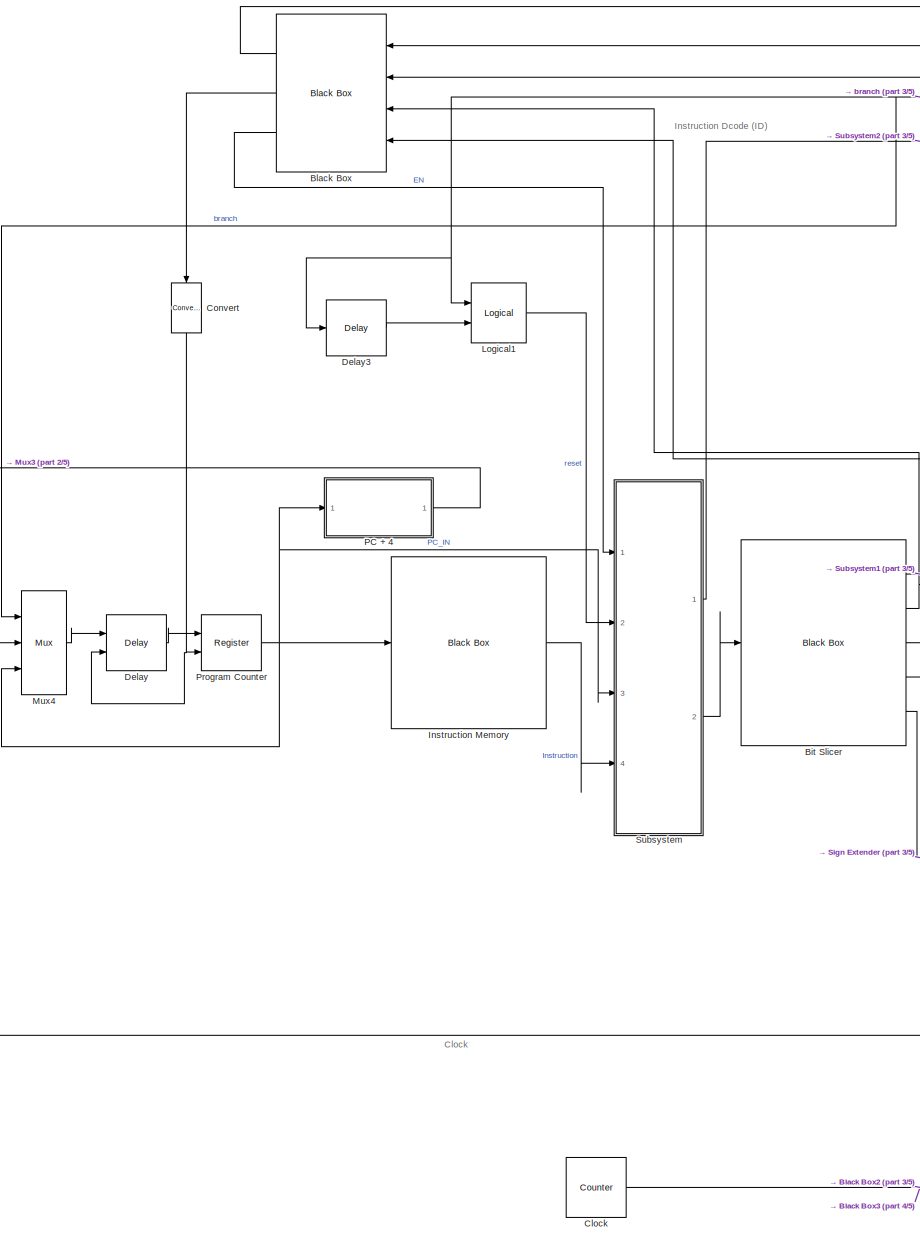
[diagram: root canvas - part 1/5, middle left region]
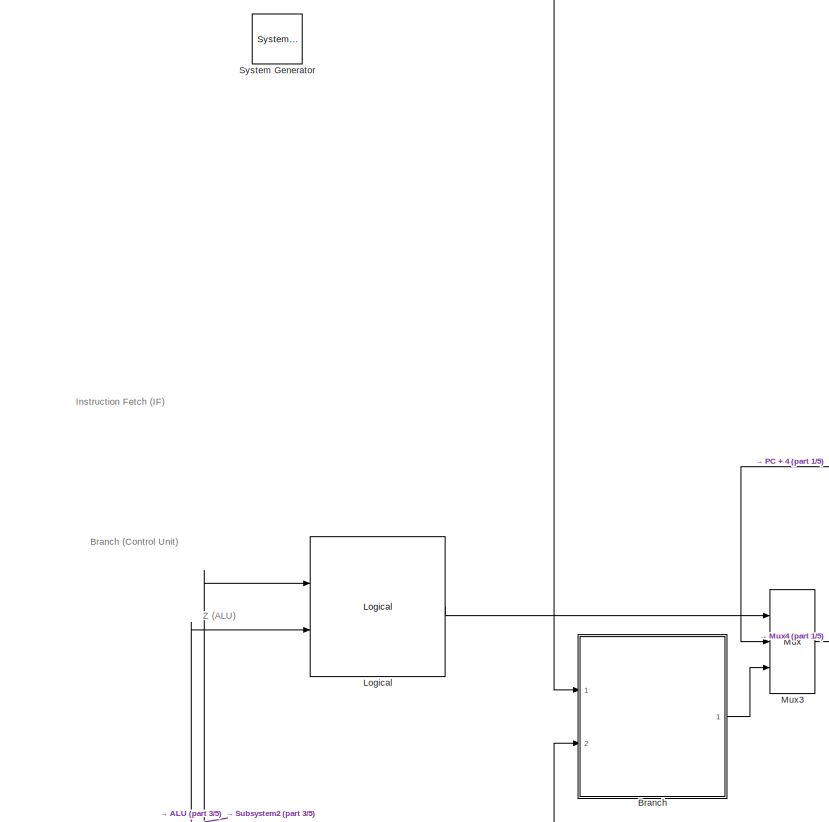
[diagram: root canvas - part 2/5, top left region]
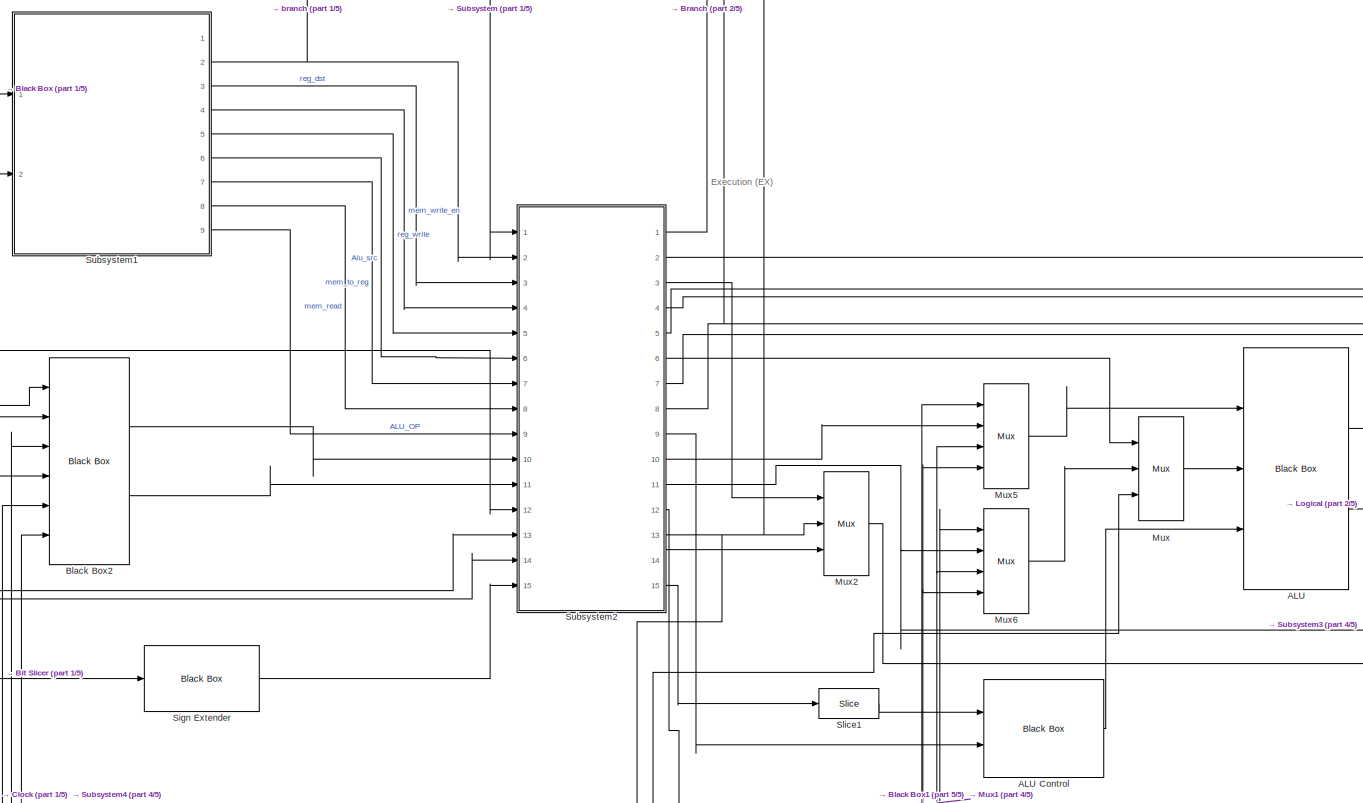
[diagram: root canvas - part 3/5, central region]
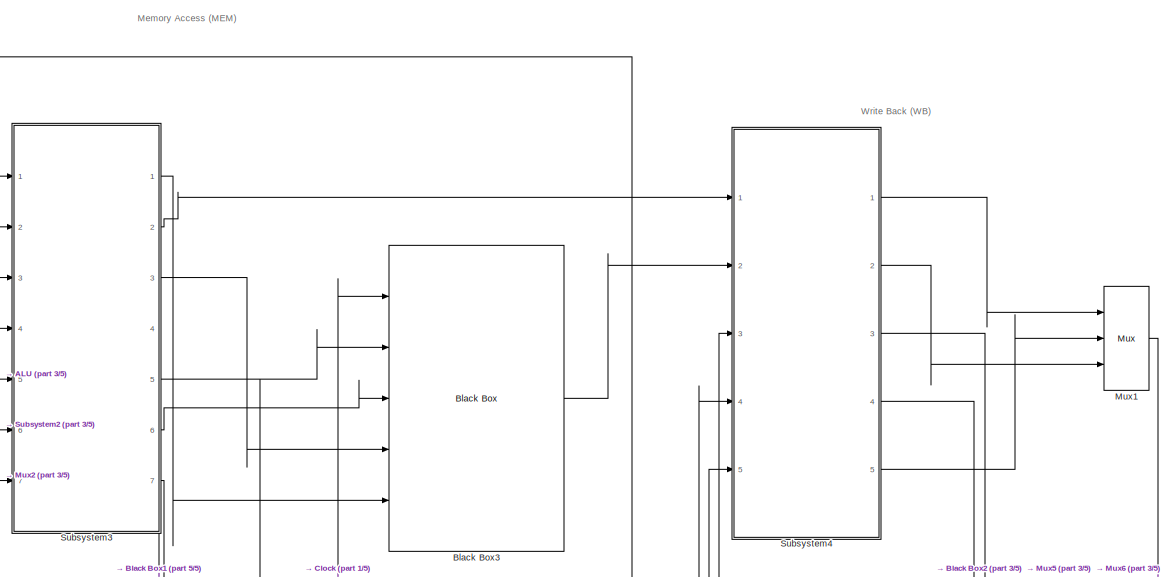
[diagram: root canvas - part 4/5, middle right region]
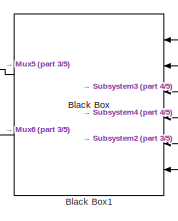
[diagram: root canvas - part 5/5, bottom right region]
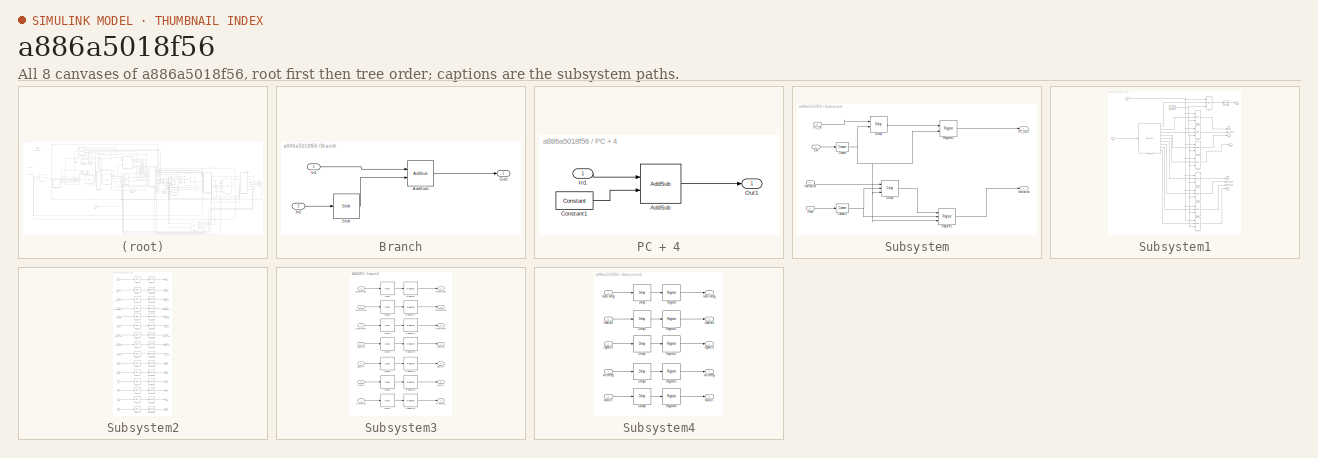
[diagram: thumbnail index - all 8 canvases of the model, root first then tree order]
MODEL slx_a886a5018f56
KIND model
CONFIG AbsTol = auto
CONFIG EnableMultiTasking = off
CONFIG FixedStep = auto
CONFIG MaxStep = auto
CONFIG MinStep = auto
CONFIG RelTol = 1e-3
CONFIG SampleTimeConstraint = Unconstrained
CONFIG Solver = VariableStepAuto
CONFIG SolverName = VariableStepAuto
CONFIG StartTime = 0.0
CONFIG StopTime = 250
BLOCK [Reference]  System Generator  REF=xbsIndex_r4/ System Generator
  AttributesFormatString = System\nGenerator
  Ports = []
  SourceBlock = xbsIndex_r4/ System Generator
  SourceType = Xilinx System Generator Block
  Tag = genX
  UserDataPersistent = on
BLOCK [Reference] ALU  REF=xbsIndex_r4/Black Box
  Ports = [3, 2]
  SourceBlock = xbsIndex_r4/Black Box
  SourceType = Xilinx Black Box Block
BLOCK [Reference] ALU Control  REF=xbsIndex_r4/Black Box
  Ports = [2, 1]
  SourceBlock = xbsIndex_r4/Black Box
  SourceType = Xilinx Black Box Block
BLOCK [Reference] Bit Slicer  REF=xbsIndex_r4/Black Box
  Ports = [1, 5]
  SourceBlock = xbsIndex_r4/Black Box
  SourceType = Xilinx Black Box Block
BLOCK [Reference] Black Box  REF=xbsIndex_r4/Black Box
  Ports = [4, 3]
  SourceBlock = xbsIndex_r4/Black Box
  SourceType = Xilinx Black Box Block
BLOCK [Reference] Black Box1  REF=xbsIndex_r4/Black Box
  Ports = [6, 2]
  SourceBlock = xbsIndex_r4/Black Box
  SourceType = Xilinx Black Box Block
BLOCK [Reference] Black Box2  REF=xbsIndex_r4/Black Box
  Ports = [6, 2]
  SourceBlock = xbsIndex_r4/Black Box
  SourceType = Xilinx Black Box Block
BLOCK [Reference] Black Box3  REF=xbsIndex_r4/Black Box
  Ports = [5, 1]
  SourceBlock = xbsIndex_r4/Black Box
  SourceType = Xilinx Black Box Block
BLOCK [SubSystem] Branch
  Ports = [2, 1]
  RequestExecContextInheritance = off
  Variant = off
BLOCK [Reference] Branch/AddSub1  REF=xbsIndex_r4/AddSub
  Ports = [2, 1]
  SourceBlock = xbsIndex_r4/AddSub
  SourceType = Xilinx Adder/Subtracter Block
BLOCK [Inport] Branch/In1
  IconDisplay = Port number
BLOCK [Inport] Branch/In2
  IconDisplay = Port number
  Port = 2
BLOCK [Outport] Branch/Out1
  IconDisplay = Port number
BLOCK [Reference] Branch/Shift  REF=xbsIndex_r4/Shift
  Ports = [1, 1]
  SourceBlock = xbsIndex_r4/Shift
  SourceType = Xilinx Binary Shift Operator Block
BLOCK [Reference] Clock  REF=xbsIndex_r4/Counter
  Ports = [0, 1]
  SourceBlock = xbsIndex_r4/Counter
  SourceType = Xilinx Counter Block
BLOCK [Reference] Convert  REF=xbsIndex_r4/Convert
  Ports = [1, 1]
  SourceBlock = xbsIndex_r4/Convert
  SourceType = Xilinx Type Converter Block
BLOCK [Reference] Delay   REF=xbsIndex_r4/Delay
  Ports = [2, 1]
  SourceBlock = xbsIndex_r4/Delay
  SourceType = Xilinx Delay Block
BLOCK [Reference] Delay3  REF=xbsIndex_r4/Delay
  Ports = [1, 1]
  SourceBlock = xbsIndex_r4/Delay
  SourceType = Xilinx Delay Block
BLOCK [Reference] Instruction Memory  REF=xbsIndex_r4/Black Box
  Ports = [1, 1]
  SourceBlock = xbsIndex_r4/Black Box
  SourceType = Xilinx Black Box Block
BLOCK [Reference] Logical  REF=xbsIndex_r4/Logical
  Ports = [2, 1]
  SourceBlock = xbsIndex_r4/Logical
  SourceType = Xilinx Logical Block Block
BLOCK [Reference] Logical1  REF=xbsIndex_r4/Logical
  Ports = [2, 1]
  SourceBlock = xbsIndex_r4/Logical
  SourceType = Xilinx Logical Block Block
BLOCK [Reference] Mux  REF=xbsIndex_r4/Mux
  Ports = [3, 1]
  SourceBlock = xbsIndex_r4/Mux
  SourceType = Xilinx Bus Multiplexer Block
BLOCK [Reference] Mux1  REF=xbsIndex_r4/Mux
  Ports = [3, 1]
  SourceBlock = xbsIndex_r4/Mux
  SourceType = Xilinx Bus Multiplexer Block
BLOCK [Reference] Mux2  REF=xbsIndex_r4/Mux
  Ports = [3, 1]
  SourceBlock = xbsIndex_r4/Mux
  SourceType = Xilinx Bus Multiplexer Block
BLOCK [Reference] Mux3  REF=xbsIndex_r4/Mux
  Ports = [3, 1]
  SourceBlock = xbsIndex_r4/Mux
  SourceType = Xilinx Bus Multiplexer Block
BLOCK [Reference] Mux4  REF=xbsIndex_r4/Mux
  Ports = [3, 1]
  SourceBlock = xbsIndex_r4/Mux
  SourceType = Xilinx Bus Multiplexer Block
BLOCK [Reference] Mux5  REF=xbsIndex_r4/Mux
  Ports = [4, 1]
  SourceBlock = xbsIndex_r4/Mux
  SourceType = Xilinx Bus Multiplexer Block
BLOCK [Reference] Mux6  REF=xbsIndex_r4/Mux
  Ports = [4, 1]
  SourceBlock = xbsIndex_r4/Mux
  SourceType = Xilinx Bus Multiplexer Block
BLOCK [SubSystem] PC + 4
  Ports = [1, 1]
  RequestExecContextInheritance = off
  Variant = off
BLOCK [Reference] PC + 4/AddSub  REF=xbsIndex_r4/AddSub
  Ports = [2, 1]
  SourceBlock = xbsIndex_r4/AddSub
  SourceType = Xilinx Adder/Subtracter Block
BLOCK [Reference] PC + 4/Constant1  REF=xbsIndex_r4/Constant
  Ports = [0, 1]
  SourceBlock = xbsIndex_r4/Constant
  SourceType = Xilinx Constant Block Block
BLOCK [Inport] PC + 4/In1
  IconDisplay = Port number
BLOCK [Outport] PC + 4/Out1
  IconDisplay = Port number
BLOCK [Reference] Program Counter   REF=xbsIndex_r4/Register
  Ports = [2, 1]
  SourceBlock = xbsIndex_r4/Register
  SourceType = Xilinx Register Block
BLOCK [Reference] Sign Extender  REF=xbsIndex_r4/Black Box
  Ports = [1, 1]
  SourceBlock = xbsIndex_r4/Black Box
  SourceType = Xilinx Black Box Block
BLOCK [Reference] Slice1  REF=xbsIndex_r4/Slice
  Ports = [1, 1]
  SourceBlock = xbsIndex_r4/Slice
  SourceType = Xilinx Bit Slice Extractor Block
BLOCK [SubSystem] Subsystem
  Ports = [4, 2]
  RequestExecContextInheritance = off
  ShowPortLabels = SignalName
  Variant = off
BLOCK [Reference] Subsystem/Convert  REF=xbsIndex_r4/Convert
  Ports = [1, 1]
  SourceBlock = xbsIndex_r4/Convert
  SourceType = Xilinx Type Converter Block
BLOCK [Reference] Subsystem/Convert1  REF=xbsIndex_r4/Convert
  Ports = [1, 1]
  SourceBlock = xbsIndex_r4/Convert
  SourceType = Xilinx Type Converter Block
BLOCK [Reference] Subsystem/Delay1  REF=xbsIndex_r4/Delay
  Ports = [3, 1]
  SourceBlock = xbsIndex_r4/Delay
  SourceType = Xilinx Delay Block
BLOCK [Reference] Subsystem/Delay4  REF=xbsIndex_r4/Delay
  Ports = [2, 1]
  SourceBlock = xbsIndex_r4/Delay
  SourceType = Xilinx Delay Block
BLOCK [Inport] Subsystem/EN
  IconDisplay = Port number
BLOCK [Outport] Subsystem/Instruction
  IconDisplay = Port number
  Port = 2
BLOCK [Inport] Subsystem/Instruction 
  IconDisplay = Port number
  Port = 4
BLOCK [Inport] Subsystem/PC_IN 
  IconDisplay = Port number
  Port = 3
BLOCK [Outport] Subsystem/PC_OUT
  IconDisplay = Port number
BLOCK [Reference] Subsystem/Register1  REF=xbsIndex_r4/Register
  Ports = [3, 1]
  SourceBlock = xbsIndex_r4/Register
  SourceType = Xilinx Register Block
BLOCK [Reference] Subsystem/Register3  REF=xbsIndex_r4/Register
  Ports = [2, 1]
  SourceBlock = xbsIndex_r4/Register
  SourceType = Xilinx Register Block
BLOCK [Inport] Subsystem/Reset 
  IconDisplay = Port number
  Port = 2
BLOCK [SubSystem] Subsystem1
  Ports = [2, 9]
  RequestExecContextInheritance = off
  ShowPortLabels = SignalName
  Variant = off
BLOCK [Reference] Subsystem1/Constant  REF=xbsIndex_r4/Constant
  Ports = [0, 1]
  SourceBlock = xbsIndex_r4/Constant
  SourceType = Xilinx Constant Block Block
BLOCK [Reference] Subsystem1/Control Unit  REF=xbsIndex_r4/Black Box
  Ports = [1, 9]
  SourceBlock = xbsIndex_r4/Black Box
  SourceType = Xilinx Black Box Block
BLOCK [Reference] Subsystem1/Convert1  REF=xbsIndex_r4/Convert
  Ports = [1, 1]
  SourceBlock = xbsIndex_r4/Convert
  SourceType = Xilinx Type Converter Block
BLOCK [Inport] Subsystem1/In1
  IconDisplay = Port number
BLOCK [Inport] Subsystem1/In2
  IconDisplay = Port number
  Port = 2
BLOCK [Outport] Subsystem1/Jump
  IconDisplay = Port number
BLOCK [Reference] Subsystem1/Mux  REF=xbsIndex_r4/Mux
  Ports = [3, 1]
  SourceBlock = xbsIndex_r4/Mux
  SourceType = Xilinx Bus Multiplexer Block
BLOCK [Reference] Subsystem1/Mux1  REF=xbsIndex_r4/Mux
  Ports = [3, 1]
  SourceBlock = xbsIndex_r4/Mux
  SourceType = Xilinx Bus Multiplexer Block
BLOCK [Reference] Subsystem1/Mux2  REF=xbsIndex_r4/Mux
  Ports = [3, 1]
  SourceBlock = xbsIndex_r4/Mux
  SourceType = Xilinx Bus Multiplexer Block
BLOCK [Reference] Subsystem1/Mux3  REF=xbsIndex_r4/Mux
  Ports = [3, 1]
  SourceBlock = xbsIndex_r4/Mux
  SourceType = Xilinx Bus Multiplexer Block
BLOCK [Reference] Subsystem1/Mux4  REF=xbsIndex_r4/Mux
  Ports = [3, 1]
  SourceBlock = xbsIndex_r4/Mux
  SourceType = Xilinx Bus Multiplexer Block
BLOCK [Reference] Subsystem1/Mux5  REF=xbsIndex_r4/Mux
  Ports = [3, 1]
  SourceBlock = xbsIndex_r4/Mux
  SourceType = Xilinx Bus Multiplexer Block
BLOCK [Reference] Subsystem1/Mux6  REF=xbsIndex_r4/Mux
  Ports = [3, 1]
  SourceBlock = xbsIndex_r4/Mux
  SourceType = Xilinx Bus Multiplexer Block
BLOCK [Reference] Subsystem1/Mux7  REF=xbsIndex_r4/Mux
  Ports = [3, 1]
  SourceBlock = xbsIndex_r4/Mux
  SourceType = Xilinx Bus Multiplexer Block
BLOCK [Reference] Subsystem1/Mux8  REF=xbsIndex_r4/Mux
  Ports = [3, 1]
  SourceBlock = xbsIndex_r4/Mux
  SourceType = Xilinx Bus Multiplexer Block
BLOCK [Outport] Subsystem1/Out2
  IconDisplay = Port number
  Port = 2
BLOCK [Outport] Subsystem1/Out3
  IconDisplay = Port number
  Port = 3
BLOCK [Outport] Subsystem1/Out4
  IconDisplay = Port number
  Port = 4
BLOCK [Outport] Subsystem1/Out5
  IconDisplay = Port number
  Port = 5
BLOCK [Outport] Subsystem1/Out6
  IconDisplay = Port number
  Port = 6
BLOCK [Outport] Subsystem1/Out7
  IconDisplay = Port number
  Port = 7
BLOCK [Outport] Subsystem1/Out8
  IconDisplay = Port number
  Port = 8
BLOCK [Outport] Subsystem1/Out9
  IconDisplay = Port number
  Port = 9
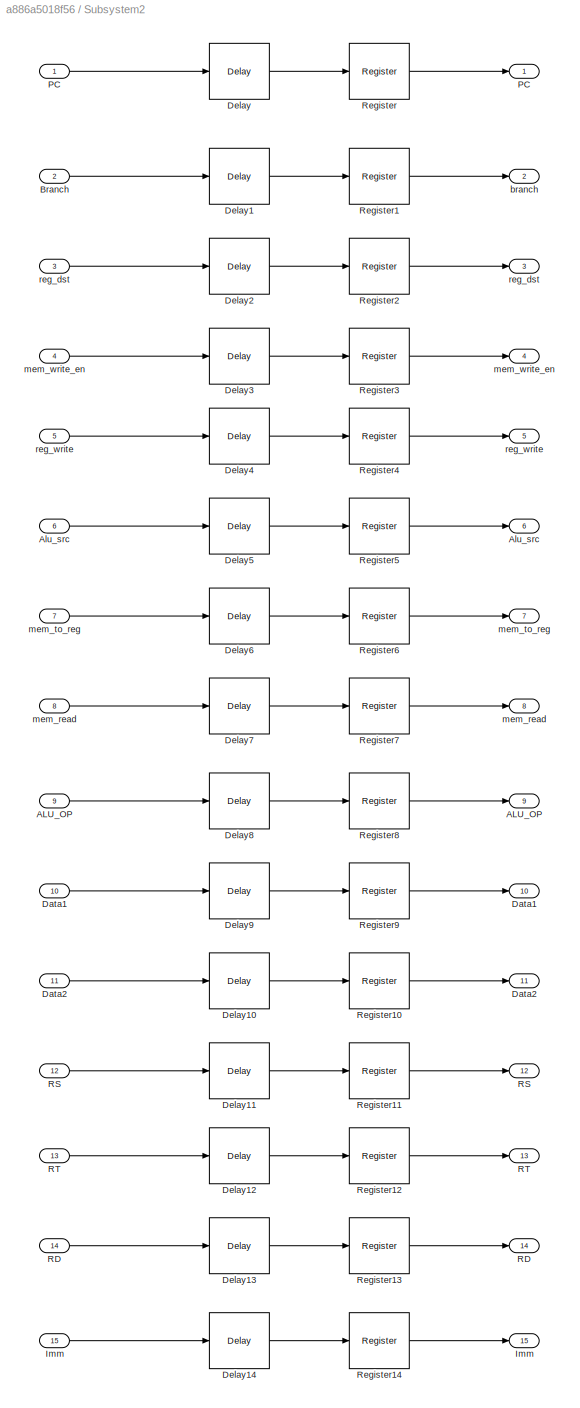
BLOCK [SubSystem] Subsystem2
  Ports = [15, 15]
  RequestExecContextInheritance = off
  ShowPortLabels = FromPortBlockName
  Variant = off
BLOCK [Inport] Subsystem2/ALU_OP
  IconDisplay = Port number
  Port = 9
BLOCK [Outport] Subsystem2/ALU_OP 
  IconDisplay = Port number
  Port = 9
BLOCK [Inport] Subsystem2/Alu_src
  IconDisplay = Port number
  Port = 6
BLOCK [Outport] Subsystem2/Alu_src 
  IconDisplay = Port number
  Port = 6
BLOCK [Inport] Subsystem2/Branch
  IconDisplay = Port number
  Port = 2
BLOCK [Inport] Subsystem2/Data1
  IconDisplay = Port number
  Port = 10
BLOCK [Outport] Subsystem2/Data1 
  IconDisplay = Port number
  Port = 10
BLOCK [Inport] Subsystem2/Data2
  IconDisplay = Port number
  Port = 11
BLOCK [Outport] Subsystem2/Data2 
  IconDisplay = Port number
  Port = 11
BLOCK [Reference] Subsystem2/Delay  REF=xbsIndex_r4/Delay
  Ports = [1, 1]
  SourceBlock = xbsIndex_r4/Delay
  SourceType = Xilinx Delay Block
BLOCK [Reference] Subsystem2/Delay1  REF=xbsIndex_r4/Delay
  Ports = [1, 1]
  SourceBlock = xbsIndex_r4/Delay
  SourceType = Xilinx Delay Block
BLOCK [Reference] Subsystem2/Delay10  REF=xbsIndex_r4/Delay
  Ports = [1, 1]
  SourceBlock = xbsIndex_r4/Delay
  SourceType = Xilinx Delay Block
BLOCK [Reference] Subsystem2/Delay11  REF=xbsIndex_r4/Delay
  Ports = [1, 1]
  SourceBlock = xbsIndex_r4/Delay
  SourceType = Xilinx Delay Block
BLOCK [Reference] Subsystem2/Delay12  REF=xbsIndex_r4/Delay
  Ports = [1, 1]
  SourceBlock = xbsIndex_r4/Delay
  SourceType = Xilinx Delay Block
BLOCK [Reference] Subsystem2/Delay13  REF=xbsIndex_r4/Delay
  Ports = [1, 1]
  SourceBlock = xbsIndex_r4/Delay
  SourceType = Xilinx Delay Block
BLOCK [Reference] Subsystem2/Delay14  REF=xbsIndex_r4/Delay
  Ports = [1, 1]
  SourceBlock = xbsIndex_r4/Delay
  SourceType = Xilinx Delay Block
BLOCK [Reference] Subsystem2/Delay2  REF=xbsIndex_r4/Delay
  Ports = [1, 1]
  SourceBlock = xbsIndex_r4/Delay
  SourceType = Xilinx Delay Block
BLOCK [Reference] Subsystem2/Delay3  REF=xbsIndex_r4/Delay
  Ports = [1, 1]
  SourceBlock = xbsIndex_r4/Delay
  SourceType = Xilinx Delay Block
BLOCK [Reference] Subsystem2/Delay4  REF=xbsIndex_r4/Delay
  Ports = [1, 1]
  SourceBlock = xbsIndex_r4/Delay
  SourceType = Xilinx Delay Block
BLOCK [Reference] Subsystem2/Delay5  REF=xbsIndex_r4/Delay
  Ports = [1, 1]
  SourceBlock = xbsIndex_r4/Delay
  SourceType = Xilinx Delay Block
BLOCK [Reference] Subsystem2/Delay6  REF=xbsIndex_r4/Delay
  Ports = [1, 1]
  SourceBlock = xbsIndex_r4/Delay
  SourceType = Xilinx Delay Block
BLOCK [Reference] Subsystem2/Delay7  REF=xbsIndex_r4/Delay
  Ports = [1, 1]
  SourceBlock = xbsIndex_r4/Delay
  SourceType = Xilinx Delay Block
BLOCK [Reference] Subsystem2/Delay8  REF=xbsIndex_r4/Delay
  Ports = [1, 1]
  SourceBlock = xbsIndex_r4/Delay
  SourceType = Xilinx Delay Block
BLOCK [Reference] Subsystem2/Delay9  REF=xbsIndex_r4/Delay
  Ports = [1, 1]
  SourceBlock = xbsIndex_r4/Delay
  SourceType = Xilinx Delay Block
BLOCK [Inport] Subsystem2/Imm
  IconDisplay = Port number
  Port = 15
BLOCK [Outport] Subsystem2/Imm 
  IconDisplay = Port number
  Port = 15
BLOCK [Outport] Subsystem2/PC
  IconDisplay = Port number
BLOCK [Inport] Subsystem2/PC 
  IconDisplay = Port number
BLOCK [Inport] Subsystem2/RD
  IconDisplay = Port number
  Port = 14
BLOCK [Outport] Subsystem2/RD 
  IconDisplay = Port number
  Port = 14
BLOCK [Inport] Subsystem2/RS
  IconDisplay = Port number
  Port = 12
BLOCK [Outport] Subsystem2/RS 
  IconDisplay = Port number
  Port = 12
BLOCK [Inport] Subsystem2/RT
  IconDisplay = Port number
  Port = 13
BLOCK [Outport] Subsystem2/RT 
  IconDisplay = Port number
  Port = 13
BLOCK [Reference] Subsystem2/Register  REF=xbsIndex_r4/Register
  Ports = [1, 1]
  SourceBlock = xbsIndex_r4/Register
  SourceType = Xilinx Register Block
BLOCK [Reference] Subsystem2/Register1  REF=xbsIndex_r4/Register
  Ports = [1, 1]
  SourceBlock = xbsIndex_r4/Register
  SourceType = Xilinx Register Block
BLOCK [Reference] Subsystem2/Register10  REF=xbsIndex_r4/Register
  Ports = [1, 1]
  SourceBlock = xbsIndex_r4/Register
  SourceType = Xilinx Register Block
BLOCK [Reference] Subsystem2/Register11  REF=xbsIndex_r4/Register
  Ports = [1, 1]
  SourceBlock = xbsIndex_r4/Register
  SourceType = Xilinx Register Block
BLOCK [Reference] Subsystem2/Register12  REF=xbsIndex_r4/Register
  Ports = [1, 1]
  SourceBlock = xbsIndex_r4/Register
  SourceType = Xilinx Register Block
BLOCK [Reference] Subsystem2/Register13  REF=xbsIndex_r4/Register
  Ports = [1, 1]
  SourceBlock = xbsIndex_r4/Register
  SourceType = Xilinx Register Block
BLOCK [Reference] Subsystem2/Register14  REF=xbsIndex_r4/Register
  Ports = [1, 1]
  SourceBlock = xbsIndex_r4/Register
  SourceType = Xilinx Register Block
BLOCK [Reference] Subsystem2/Register2  REF=xbsIndex_r4/Register
  Ports = [1, 1]
  SourceBlock = xbsIndex_r4/Register
  SourceType = Xilinx Register Block
BLOCK [Reference] Subsystem2/Register3  REF=xbsIndex_r4/Register
  Ports = [1, 1]
  SourceBlock = xbsIndex_r4/Register
  SourceType = Xilinx Register Block
BLOCK [Reference] Subsystem2/Register4  REF=xbsIndex_r4/Register
  Ports = [1, 1]
  SourceBlock = xbsIndex_r4/Register
  SourceType = Xilinx Register Block
BLOCK [Reference] Subsystem2/Register5  REF=xbsIndex_r4/Register
  Ports = [1, 1]
  SourceBlock = xbsIndex_r4/Register
  SourceType = Xilinx Register Block
BLOCK [Reference] Subsystem2/Register6  REF=xbsIndex_r4/Register
  Ports = [1, 1]
  SourceBlock = xbsIndex_r4/Register
  SourceType = Xilinx Register Block
BLOCK [Reference] Subsystem2/Register7  REF=xbsIndex_r4/Register
  Ports = [1, 1]
  SourceBlock = xbsIndex_r4/Register
  SourceType = Xilinx Register Block
BLOCK [Reference] Subsystem2/Register8  REF=xbsIndex_r4/Register
  Ports = [1, 1]
  SourceBlock = xbsIndex_r4/Register
  SourceType = Xilinx Register Block
BLOCK [Reference] Subsystem2/Register9  REF=xbsIndex_r4/Register
  Ports = [1, 1]
  SourceBlock = xbsIndex_r4/Register
  SourceType = Xilinx Register Block
BLOCK [Outport] Subsystem2/branch
  IconDisplay = Port number
  Port = 2
BLOCK [Inport] Subsystem2/mem_read
  IconDisplay = Port number
  Port = 8
BLOCK [Outport] Subsystem2/mem_read 
  IconDisplay = Port number
  Port = 8
BLOCK [Inport] Subsystem2/mem_to_reg
  IconDisplay = Port number
  Port = 7
BLOCK [Outport] Subsystem2/mem_to_reg 
  IconDisplay = Port number
  Port = 7
BLOCK [Inport] Subsystem2/mem_write_en
  IconDisplay = Port number
  Port = 4
BLOCK [Outport] Subsystem2/mem_write_en 
  IconDisplay = Port number
  Port = 4
BLOCK [Inport] Subsystem2/reg_dst
  IconDisplay = Port number
  Port = 3
BLOCK [Outport] Subsystem2/reg_dst 
  IconDisplay = Port number
  Port = 3
BLOCK [Inport] Subsystem2/reg_write
  IconDisplay = Port number
  Port = 5
BLOCK [Outport] Subsystem2/reg_write 
  IconDisplay = Port number
  Port = 5
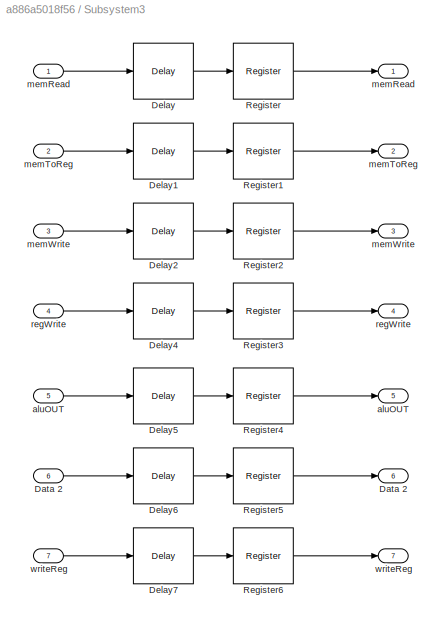
BLOCK [SubSystem] Subsystem3
  Ports = [7, 7]
  RequestExecContextInheritance = off
  ShowPortLabels = FromPortBlockName
  Variant = off
BLOCK [Inport] Subsystem3/Data 2
  IconDisplay = Port number
  Port = 6
BLOCK [Outport] Subsystem3/Data 2 
  IconDisplay = Port number
  Port = 6
BLOCK [Reference] Subsystem3/Delay  REF=xbsIndex_r4/Delay
  Ports = [1, 1]
  SourceBlock = xbsIndex_r4/Delay
  SourceType = Xilinx Delay Block
BLOCK [Reference] Subsystem3/Delay1  REF=xbsIndex_r4/Delay
  Ports = [1, 1]
  SourceBlock = xbsIndex_r4/Delay
  SourceType = Xilinx Delay Block
BLOCK [Reference] Subsystem3/Delay2  REF=xbsIndex_r4/Delay
  Ports = [1, 1]
  SourceBlock = xbsIndex_r4/Delay
  SourceType = Xilinx Delay Block
BLOCK [Reference] Subsystem3/Delay4  REF=xbsIndex_r4/Delay
  Ports = [1, 1]
  SourceBlock = xbsIndex_r4/Delay
  SourceType = Xilinx Delay Block
BLOCK [Reference] Subsystem3/Delay5  REF=xbsIndex_r4/Delay
  Ports = [1, 1]
  SourceBlock = xbsIndex_r4/Delay
  SourceType = Xilinx Delay Block
BLOCK [Reference] Subsystem3/Delay6  REF=xbsIndex_r4/Delay
  Ports = [1, 1]
  SourceBlock = xbsIndex_r4/Delay
  SourceType = Xilinx Delay Block
BLOCK [Reference] Subsystem3/Delay7  REF=xbsIndex_r4/Delay
  Ports = [1, 1]
  SourceBlock = xbsIndex_r4/Delay
  SourceType = Xilinx Delay Block
BLOCK [Reference] Subsystem3/Register  REF=xbsIndex_r4/Register
  Ports = [1, 1]
  SourceBlock = xbsIndex_r4/Register
  SourceType = Xilinx Register Block
BLOCK [Reference] Subsystem3/Register1  REF=xbsIndex_r4/Register
  Ports = [1, 1]
  SourceBlock = xbsIndex_r4/Register
  SourceType = Xilinx Register Block
BLOCK [Reference] Subsystem3/Register2  REF=xbsIndex_r4/Register
  Ports = [1, 1]
  SourceBlock = xbsIndex_r4/Register
  SourceType = Xilinx Register Block
BLOCK [Reference] Subsystem3/Register3  REF=xbsIndex_r4/Register
  Ports = [1, 1]
  SourceBlock = xbsIndex_r4/Register
  SourceType = Xilinx Register Block
BLOCK [Reference] Subsystem3/Register4  REF=xbsIndex_r4/Register
  Ports = [1, 1]
  SourceBlock = xbsIndex_r4/Register
  SourceType = Xilinx Register Block
BLOCK [Reference] Subsystem3/Register5  REF=xbsIndex_r4/Register
  Ports = [1, 1]
  SourceBlock = xbsIndex_r4/Register
  SourceType = Xilinx Register Block
BLOCK [Reference] Subsystem3/Register6  REF=xbsIndex_r4/Register
  Ports = [1, 1]
  SourceBlock = xbsIndex_r4/Register
  SourceType = Xilinx Register Block
BLOCK [Inport] Subsystem3/aluOUT
  IconDisplay = Port number
  Port = 5
BLOCK [Outport] Subsystem3/aluOUT 
  IconDisplay = Port number
  Port = 5
BLOCK [Outport] Subsystem3/memRead 
  IconDisplay = Port number
BLOCK [Inport] Subsystem3/memToReg
  IconDisplay = Port number
  Port = 2
BLOCK [Outport] Subsystem3/memToReg 
  IconDisplay = Port number
  Port = 2
BLOCK [Inport] Subsystem3/memWrite
  IconDisplay = Port number
  Port = 3
BLOCK [Outport] Subsystem3/memWrite 
  IconDisplay = Port number
  Port = 3
BLOCK [Inport] Subsystem3/regWrite
  IconDisplay = Port number
  Port = 4
BLOCK [Outport] Subsystem3/regWrite 
  IconDisplay = Port number
  Port = 4
BLOCK [Inport] Subsystem3/writeReg
  IconDisplay = Port number
  Port = 7
BLOCK [Outport] Subsystem3/writeReg 
  IconDisplay = Port number
  Port = 7
BLOCK [SubSystem] Subsystem4
  Ports = [5, 5]
  RequestExecContextInheritance = off
  ShowPortLabels = FromPortBlockName
  Variant = off
BLOCK [Reference] Subsystem4/Delay  REF=xbsIndex_r4/Delay
  Ports = [1, 1]
  SourceBlock = xbsIndex_r4/Delay
  SourceType = Xilinx Delay Block
BLOCK [Reference] Subsystem4/Delay1  REF=xbsIndex_r4/Delay
  Ports = [1, 1]
  SourceBlock = xbsIndex_r4/Delay
  SourceType = Xilinx Delay Block
BLOCK [Reference] Subsystem4/Delay2  REF=xbsIndex_r4/Delay
  Ports = [1, 1]
  SourceBlock = xbsIndex_r4/Delay
  SourceType = Xilinx Delay Block
BLOCK [Reference] Subsystem4/Delay3  REF=xbsIndex_r4/Delay
  Ports = [1, 1]
  SourceBlock = xbsIndex_r4/Delay
  SourceType = Xilinx Delay Block
BLOCK [Reference] Subsystem4/Delay4  REF=xbsIndex_r4/Delay
  Ports = [1, 1]
  SourceBlock = xbsIndex_r4/Delay
  SourceType = Xilinx Delay Block
BLOCK [Reference] Subsystem4/Register  REF=xbsIndex_r4/Register
  Ports = [1, 1]
  SourceBlock = xbsIndex_r4/Register
  SourceType = Xilinx Register Block
BLOCK [Reference] Subsystem4/Register1  REF=xbsIndex_r4/Register
  Ports = [1, 1]
  SourceBlock = xbsIndex_r4/Register
  SourceType = Xilinx Register Block
BLOCK [Reference] Subsystem4/Register2  REF=xbsIndex_r4/Register
  Ports = [1, 1]
  SourceBlock = xbsIndex_r4/Register
  SourceType = Xilinx Register Block
BLOCK [Reference] Subsystem4/Register3  REF=xbsIndex_r4/Register
  Ports = [1, 1]
  SourceBlock = xbsIndex_r4/Register
  SourceType = Xilinx Register Block
BLOCK [Reference] Subsystem4/Register4  REF=xbsIndex_r4/Register
  Ports = [1, 1]
  SourceBlock = xbsIndex_r4/Register
  SourceType = Xilinx Register Block
BLOCK [Inport] Subsystem4/aluOUT
  IconDisplay = Port number
  Port = 5
BLOCK [Outport] Subsystem4/aluOUT 
  IconDisplay = Port number
  Port = 5
BLOCK [Outport] Subsystem4/memToReg 
  IconDisplay = Port number
BLOCK [Inport] Subsystem4/readData
  IconDisplay = Port number
  Port = 2
BLOCK [Outport] Subsystem4/readData 
  IconDisplay = Port number
  Port = 2
BLOCK [Inport] Subsystem4/regWrite
  IconDisplay = Port number
  Port = 3
BLOCK [Outport] Subsystem4/regWrite 
  IconDisplay = Port number
  Port = 3
BLOCK [Inport] Subsystem4/writeReg
  IconDisplay = Port number
  Port = 4
BLOCK [Outport] Subsystem4/writeReg 
  IconDisplay = Port number
  Port = 4
ANNOTATION (root): Instruction Fetch (IF)
ANNOTATION (root): Clock
ANNOTATION (root): Execution (EX)
ANNOTATION (root): Instruction Dcode (ID)
ANNOTATION (root): Write Back (WB)
ANNOTATION (root): Branch (Control Unit)
ANNOTATION (root): Z (ALU)
ANNOTATION (root): Memory Access (MEM)
LINE ALU Control:1 -> ALU:3
LINE ALU:1 -> Subsystem3:5
LINE ALU:2 -> Logical:2
LINE Bit Slicer:1 -> Subsystem1:2
NET Bit Slicer:2 -> Black Box2:1, Black Box:3, Subsystem2:12
NET Bit Slicer:3 -> Black Box2:2, Black Box:4, Subsystem2:13
LINE Bit Slicer:4 -> Subsystem2:14
LINE Bit Slicer:5 -> Sign Extender:1
LINE Black Box1:1 -> Mux5:1
LINE Black Box1:2 -> Mux6:1
LINE Black Box2:1 -> Subsystem2:10
LINE Black Box2:2 -> Subsystem2:11
LINE Black Box3:1 -> Subsystem4:2
LINE Black Box:1 -> Subsystem1:1
LINE Black Box:2 -> Convert:1
LINE Black Box:3 -> Subsystem:1
LINE Branch/AddSub1:1 -> Branch/Out1:1
LINE Branch/In1:1 -> Branch/AddSub1:1
LINE Branch/In2:1 -> Branch/Shift:1
LINE Branch/Shift:1 -> Branch/AddSub1:2
LINE Branch:1 -> Mux3:3
NET Clock:1 -> Black Box2:6, Black Box3:1
NET Convert:1 -> Delay :2, Program Counter :2
LINE Delay :1 -> Program Counter :1
LINE Delay3:1 -> Logical1:2
LINE Instruction Memory:1 -> Subsystem:4
LINE Logical1:1 -> Subsystem:2
LINE Logical:1 -> Mux3:1
NET Mux1:1 -> Black Box2:4, Mux5:3, Mux6:3
LINE Mux2:1 -> Subsystem3:7
LINE Mux3:1 -> Mux4:2
LINE Mux4:1 -> Delay :1
LINE Mux5:1 -> ALU:1
LINE Mux6:1 -> Mux:2
LINE Mux:1 -> ALU:2
LINE PC + 4/AddSub:1 -> PC + 4/Out1:1
LINE PC + 4/Constant1:1 -> PC + 4/AddSub:2
LINE PC + 4/In1:1 -> PC + 4/AddSub:1
LINE PC + 4:1 -> Mux3:2
NET Program Counter :1 -> Instruction Memory:1, Mux4:3, PC + 4:1, Subsystem:3
LINE Sign Extender:1 -> Subsystem2:15
LINE Slice1:1 -> ALU Control:1
NET Subsystem/Convert1:1 -> Subsystem/Delay1:2, Subsystem/Register1:2
NET Subsystem/Convert:1 -> Subsystem/Delay1:3, Subsystem/Delay4:2, Subsystem/Register1:3, Subsystem/Register3:2
LINE Subsystem/Delay1:1 -> Subsystem/Register1:1
LINE Subsystem/Delay4:1 -> Subsystem/Register3:1
LINE Subsystem/EN:1 -> Subsystem/Convert:1
LINE Subsystem/Instruction :1 -> Subsystem/Delay1:1
LINE Subsystem/PC_IN :1 -> Subsystem/Delay4:1
LINE Subsystem/Register1:1 -> Subsystem/Instruction:1
LINE Subsystem/Register3:1 -> Subsystem/PC_OUT:1
LINE Subsystem/Reset :1 -> Subsystem/Convert1:1
NET Subsystem1/Constant:1 -> Subsystem1/Mux1:3, Subsystem1/Mux2:3, Subsystem1/Mux3:3, Subsystem1/Mux4:3, Subsystem1/Mux5:3, Subsystem1/Mux6:3, Subsystem1/Mux7:3, Subsystem1/Mux8:3, Subsystem1/Mux:3
LINE Subsystem1/Control Unit:1 -> Subsystem1/Mux:2
LINE Subsystem1/Control Unit:2 -> Subsystem1/Mux1:2
LINE Subsystem1/Control Unit:3 -> Subsystem1/Mux2:2
LINE Subsystem1/Control Unit:4 -> Subsystem1/Mux3:2
LINE Subsystem1/Control Unit:5 -> Subsystem1/Mux4:2
LINE Subsystem1/Control Unit:6 -> Subsystem1/Mux5:2
LINE Subsystem1/Control Unit:7 -> Subsystem1/Mux6:2
LINE Subsystem1/Control Unit:8 -> Subsystem1/Mux7:2
LINE Subsystem1/Control Unit:9 -> Subsystem1/Mux8:2
LINE Subsystem1/Convert1:1 -> Subsystem1/Out9:1
NET Subsystem1/In1:1 -> Subsystem1/Mux1:1, Subsystem1/Mux2:1, Subsystem1/Mux3:1, Subsystem1/Mux4:1, Subsystem1/Mux5:1, Subsystem1/Mux6:1, Subsystem1/Mux7:1, Subsystem1/Mux8:1, Subsystem1/Mux:1
LINE Subsystem1/In2:1 -> Subsystem1/Control Unit:1
LINE Subsystem1/Mux1:1 -> Subsystem1/Out3:1
LINE Subsystem1/Mux2:1 -> Subsystem1/Out7:1
LINE Subsystem1/Mux3:1 -> Subsystem1/Jump:1
LINE Subsystem1/Mux4:1 -> Subsystem1/Out2:1
LINE Subsystem1/Mux5:1 -> Subsystem1/Out8:1
LINE Subsystem1/Mux6:1 -> Subsystem1/Out4:1
LINE Subsystem1/Mux7:1 -> Subsystem1/Out5:1
LINE Subsystem1/Mux8:1 -> Subsystem1/Out6:1
LINE Subsystem1/Mux:1 -> Subsystem1/Convert1:1
NET Subsystem1:2 -> Delay3:1, Logical1:1, Mux4:1, Subsystem2:2
LINE Subsystem1:3 -> Subsystem2:3
LINE Subsystem1:4 -> Subsystem2:4
LINE Subsystem1:5 -> Subsystem2:5
LINE Subsystem1:6 -> Subsystem2:6
LINE Subsystem1:7 -> Subsystem2:7
LINE Subsystem1:8 -> Subsystem2:8
LINE Subsystem1:9 -> Subsystem2:9
LINE Subsystem2/ALU_OP:1 -> Subsystem2/Delay8:1
LINE Subsystem2/Alu_src:1 -> Subsystem2/Delay5:1
LINE Subsystem2/Branch:1 -> Subsystem2/Delay1:1
LINE Subsystem2/Data1:1 -> Subsystem2/Delay9:1
LINE Subsystem2/Data2:1 -> Subsystem2/Delay10:1
LINE Subsystem2/Delay10:1 -> Subsystem2/Register10:1
LINE Subsystem2/Delay11:1 -> Subsystem2/Register11:1
LINE Subsystem2/Delay12:1 -> Subsystem2/Register12:1
LINE Subsystem2/Delay13:1 -> Subsystem2/Register13:1
LINE Subsystem2/Delay14:1 -> Subsystem2/Register14:1
LINE Subsystem2/Delay1:1 -> Subsystem2/Register1:1
LINE Subsystem2/Delay2:1 -> Subsystem2/Register2:1
LINE Subsystem2/Delay3:1 -> Subsystem2/Register3:1
LINE Subsystem2/Delay4:1 -> Subsystem2/Register4:1
LINE Subsystem2/Delay5:1 -> Subsystem2/Register5:1
LINE Subsystem2/Delay6:1 -> Subsystem2/Register6:1
LINE Subsystem2/Delay7:1 -> Subsystem2/Register7:1
LINE Subsystem2/Delay8:1 -> Subsystem2/Register8:1
LINE Subsystem2/Delay9:1 -> Subsystem2/Register9:1
LINE Subsystem2/Delay:1 -> Subsystem2/Register:1
LINE Subsystem2/Imm:1 -> Subsystem2/Delay14:1
LINE Subsystem2/PC :1 -> Subsystem2/Delay:1
LINE Subsystem2/RD:1 -> Subsystem2/Delay13:1
LINE Subsystem2/RS:1 -> Subsystem2/Delay11:1
LINE Subsystem2/RT:1 -> Subsystem2/Delay12:1
LINE Subsystem2/Register10:1 -> Subsystem2/Data2 :1
LINE Subsystem2/Register11:1 -> Subsystem2/RS :1
LINE Subsystem2/Register12:1 -> Subsystem2/RT :1
LINE Subsystem2/Register13:1 -> Subsystem2/RD :1
LINE Subsystem2/Register14:1 -> Subsystem2/Imm :1
LINE Subsystem2/Register1:1 -> Subsystem2/branch:1
LINE Subsystem2/Register2:1 -> Subsystem2/reg_dst :1
LINE Subsystem2/Register3:1 -> Subsystem2/mem_write_en :1
LINE Subsystem2/Register4:1 -> Subsystem2/reg_write :1
LINE Subsystem2/Register5:1 -> Subsystem2/Alu_src :1
LINE Subsystem2/Register6:1 -> Subsystem2/mem_to_reg :1
LINE Subsystem2/Register7:1 -> Subsystem2/mem_read :1
LINE Subsystem2/Register8:1 -> Subsystem2/ALU_OP :1
LINE Subsystem2/Register9:1 -> Subsystem2/Data1 :1
LINE Subsystem2/Register:1 -> Subsystem2/PC:1
LINE Subsystem2/mem_read:1 -> Subsystem2/Delay7:1
LINE Subsystem2/mem_to_reg:1 -> Subsystem2/Delay6:1
LINE Subsystem2/mem_write_en:1 -> Subsystem2/Delay3:1
LINE Subsystem2/reg_dst:1 -> Subsystem2/Delay2:1
LINE Subsystem2/reg_write:1 -> Subsystem2/Delay4:1
LINE Subsystem2:1 -> Branch:1
LINE Subsystem2:10 -> Mux5:2
NET Subsystem2:11 -> Mux6:2, Subsystem3:6
LINE Subsystem2:12 -> Black Box1:5
NET Subsystem2:13 -> Black Box1:6, Black Box:2, Mux2:2
LINE Subsystem2:14 -> Mux2:3
NET Subsystem2:15 -> Branch:2, Mux:3, Slice1:1
LINE Subsystem2:2 -> Logical:1
LINE Subsystem2:3 -> Mux2:1
LINE Subsystem2:4 -> Subsystem3:3
LINE Subsystem2:5 -> Subsystem3:4
LINE Subsystem2:6 -> Mux:1
LINE Subsystem2:7 -> Subsystem3:2
NET Subsystem2:8 -> Black Box:1, Subsystem3:1
LINE Subsystem2:9 -> ALU Control:2
LINE Subsystem3/Data 2:1 -> Subsystem3/Delay6:1
LINE Subsystem3/Delay1:1 -> Subsystem3/Register1:1
LINE Subsystem3/Delay2:1 -> Subsystem3/Register2:1
LINE Subsystem3/Delay4:1 -> Subsystem3/Register3:1
LINE Subsystem3/Delay5:1 -> Subsystem3/Register4:1
LINE Subsystem3/Delay6:1 -> Subsystem3/Register5:1
LINE Subsystem3/Delay7:1 -> Subsystem3/Register6:1
LINE Subsystem3/Delay:1 -> Subsystem3/Register:1
LINE Subsystem3/Register1:1 -> Subsystem3/memToReg :1
LINE Subsystem3/Register2:1 -> Subsystem3/memWrite :1
LINE Subsystem3/Register3:1 -> Subsystem3/regWrite :1
LINE Subsystem3/Register4:1 -> Subsystem3/aluOUT :1
LINE Subsystem3/Register5:1 -> Subsystem3/Data 2 :1
LINE Subsystem3/Register6:1 -> Subsystem3/writeReg :1
LINE Subsystem3/Register:1 -> Subsystem3/memRead :1
LINE Subsystem3/aluOUT:1 -> Subsystem3/Delay5:1
LINE Subsystem3/memRead :1 -> Subsystem3/Delay:1
LINE Subsystem3/memToReg:1 -> Subsystem3/Delay1:1
LINE Subsystem3/memWrite:1 -> Subsystem3/Delay2:1
LINE Subsystem3/regWrite:1 -> Subsystem3/Delay4:1
LINE Subsystem3/writeReg:1 -> Subsystem3/Delay7:1
LINE Subsystem3:1 -> Black Box3:5
LINE Subsystem3:2 -> Subsystem4:1
LINE Subsystem3:3 -> Black Box3:4
NET Subsystem3:4 -> Black Box1:3, Subsystem4:3
NET Subsystem3:5 -> Black Box3:2, Mux5:4, Mux6:4, Subsystem4:5
LINE Subsystem3:6 -> Black Box3:3
NET Subsystem3:7 -> Black Box1:1, Subsystem4:4
LINE Subsystem4/Delay1:1 -> Subsystem4/Register1:1
LINE Subsystem4/Delay2:1 -> Subsystem4/Register2:1
LINE Subsystem4/Delay3:1 -> Subsystem4/Register3:1
LINE Subsystem4/Delay4:1 -> Subsystem4/Register4:1
LINE Subsystem4/Delay:1 -> Subsystem4/Register:1
LINE Subsystem4/Register1:1 -> Subsystem4/readData :1
LINE Subsystem4/Register2:1 -> Subsystem4/regWrite :1
LINE Subsystem4/Register3:1 -> Subsystem4/writeReg :1
LINE Subsystem4/Register4:1 -> Subsystem4/aluOUT :1
LINE Subsystem4/Register:1 -> Subsystem4/memToReg :1
LINE Subsystem4/aluOUT:1 -> Subsystem4/Delay4:1
LINE Subsystem4/memToReg :1 -> Subsystem4/Delay:1
LINE Subsystem4/readData:1 -> Subsystem4/Delay1:1
LINE Subsystem4/regWrite:1 -> Subsystem4/Delay2:1
LINE Subsystem4/writeReg:1 -> Subsystem4/Delay3:1
LINE Subsystem4:1 -> Mux1:1
LINE Subsystem4:2 -> Mux1:3
NET Subsystem4:3 -> Black Box1:4, Black Box2:5
NET Subsystem4:4 -> Black Box1:2, Black Box2:3
LINE Subsystem4:5 -> Mux1:2
LINE Subsystem:1 -> Subsystem2:1
LINE Subsystem:2 -> Bit Slicer:1
note: NET lines group one-source signal fan-out (src -> all destinations, sorted); 1:1 wires keep LINE
